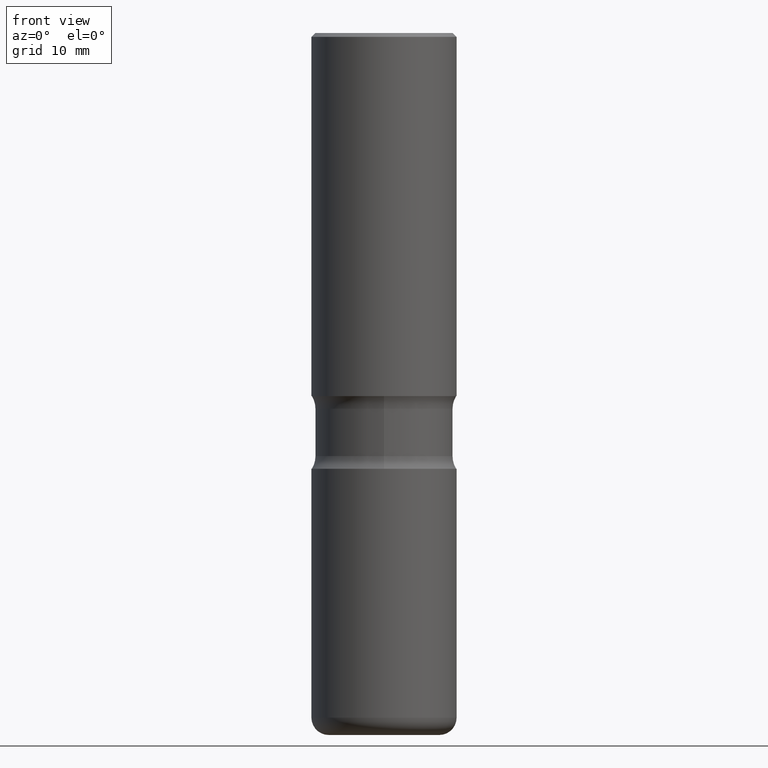
[diagram: clean part render]
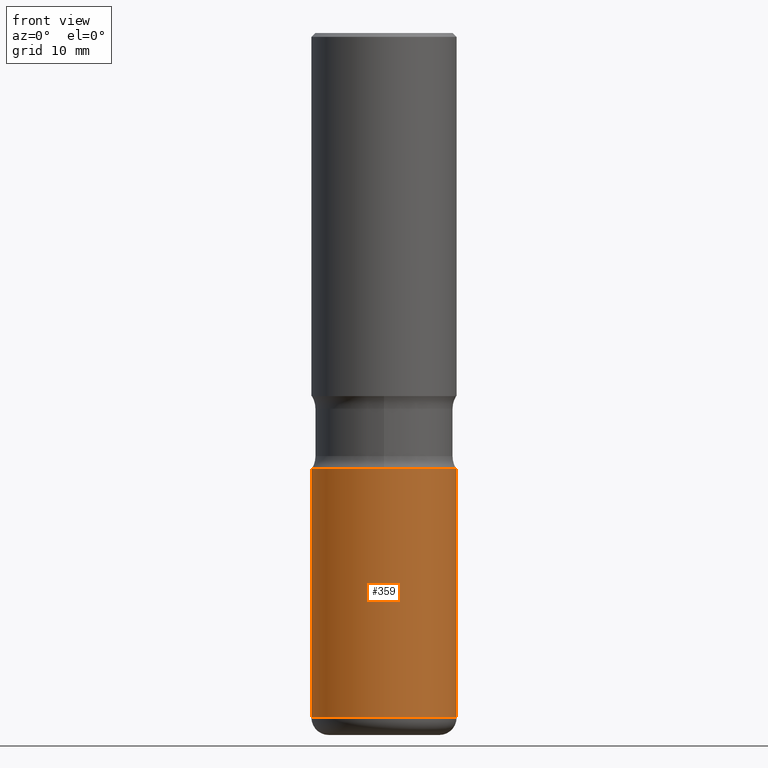
[diagram: same view with one face highlighted and labeled with its STEP entity id]
A machine part, front view. The second image highlights one B-rep face of the part: STEP entity #359.
In plain terms, the highlighted cylindrical surface (partial cylindrical patch) has radius 9.525 mm, axis along (-0, 0, 1).
Its self-contained STEP definition (entity closure, byte-faithful):
#22 = CARTESIAN_POINT ( 'NONE',  ( -0.3750000000000002220, -9.677851273710145206E-15, -3.535000000000000586 ) ) ;
#51 = EDGE_CURVE ( 'NONE', #85, #92, #390, .T. ) ;
#55 = DIRECTION ( 'NONE',  ( -2.445468806185136877E-29, 3.491481338843145188E-15, 1.000000000000000000 ) ) ;
#85 = VERTEX_POINT ( 'NONE', #22 ) ;
#89 = CARTESIAN_POINT ( 'NONE',  ( 5.502304813916559585E-29, -7.855833012397080026E-15, -2.250000000000000888 ) ) ;
#92 = VERTEX_POINT ( 'NONE', #206 ) ;
#120 = CARTESIAN_POINT ( 'NONE',  ( 0.3750000000000003886, -2.618611004132352383E-15, 1.828566290923477884E-29 ) ) ;
#121 = ORIENTED_EDGE ( 'NONE', *, *, #405, .F. ) ;
#127 = CARTESIAN_POINT ( 'NONE',  ( 0.000000000000000000, 0.000000000000000000, 0.000000000000000000 ) ) ;
#180 = AXIS2_PLACEMENT_3D ( 'NONE', #89, #521, #264 ) ;
#187 = VECTOR ( 'NONE', #291, 39.37007874015748143 ) ;
#196 = CARTESIAN_POINT ( 'NONE',  ( 8.644732229864458497E-29, -1.234238653281052248E-14, -3.535000000000000586 ) ) ;
#206 = CARTESIAN_POINT ( 'NONE',  ( 0.3750000000000002220, -1.496099753694287407E-14, -3.535000000000000586 ) ) ;
#210 = VECTOR ( 'NONE', #55, 39.37007874015748143 ) ;
#221 = EDGE_CURVE ( 'NONE', #92, #287, #410, .T. ) ;
#237 = ORIENTED_EDGE ( 'NONE', *, *, #330, .F. ) ;
#264 = DIRECTION ( 'NONE',  ( 1.000000000000000000, -6.982962677686265922E-15, 0.000000000000000000 ) ) ;
#271 = VERTEX_POINT ( 'NONE', #328 ) ;
#287 = VERTEX_POINT ( 'NONE', #431 ) ;
#291 = DIRECTION ( 'NONE',  ( -2.445468806185136877E-29, 3.491481338843145188E-15, 1.000000000000000000 ) ) ;
#300 = LINE ( 'NONE', #379, #210 ) ;
#308 = CIRCLE ( 'NONE', #180, 0.3750000000000003886 ) ;
#311 = ORIENTED_EDGE ( 'NONE', *, *, #51, .T. ) ;
#328 = CARTESIAN_POINT ( 'NONE',  ( -0.3750000000000003886, -7.434574513503423979E-15, -2.250000000000000888 ) ) ;
#330 = EDGE_CURVE ( 'NONE', #85, #271, #300, .T. ) ;
#331 = AXIS2_PLACEMENT_3D ( 'NONE', #196, #553, #512 ) ;
#339 = DIRECTION ( 'NONE',  ( -2.445468806185136597E-29, 3.491481338843145583E-15, 1.000000000000000000 ) ) ;
#354 = AXIS2_PLACEMENT_3D ( 'NONE', #127, #339, #387 ) ;
#359 = ADVANCED_FACE ( 'NONE', ( #381 ), #472, .T. ) ;
#379 = CARTESIAN_POINT ( 'NONE',  ( -0.3750000000000003886, 2.664535259100378458E-15, -1.844600658845591560E-29 ) ) ;
#381 = FACE_OUTER_BOUND ( 'NONE', #546, .T. ) ;
#387 = DIRECTION ( 'NONE',  ( 1.000000000000000000, -6.982962677686265922E-15, 4.876176775795935793E-29 ) ) ;
#390 = CIRCLE ( 'NONE', #331, 0.3750000000000003886 ) ;
#405 = EDGE_CURVE ( 'NONE', #271, #287, #308, .T. ) ;
#410 = LINE ( 'NONE', #120, #187 ) ;
#431 = CARTESIAN_POINT ( 'NONE',  ( 0.3750000000000003886, -1.047444401652943320E-14, -2.250000000000000888 ) ) ;
#472 = CYLINDRICAL_SURFACE ( 'NONE', #354, 0.3750000000000003886 ) ;
#497 = ORIENTED_EDGE ( 'NONE', *, *, #221, .T. ) ;
#512 = DIRECTION ( 'NONE',  ( 1.000000000000000000, -6.982962677686265922E-15, 0.000000000000000000 ) ) ;
#521 = DIRECTION ( 'NONE',  ( -2.445468806185136597E-29, 3.491481338843145583E-15, 1.000000000000000000 ) ) ;
#546 = EDGE_LOOP ( 'NONE', ( #237, #311, #497, #121 ) ) ;
#553 = DIRECTION ( 'NONE',  ( -2.445468806185136597E-29, 3.491481338843145583E-15, 1.000000000000000000 ) ) ;